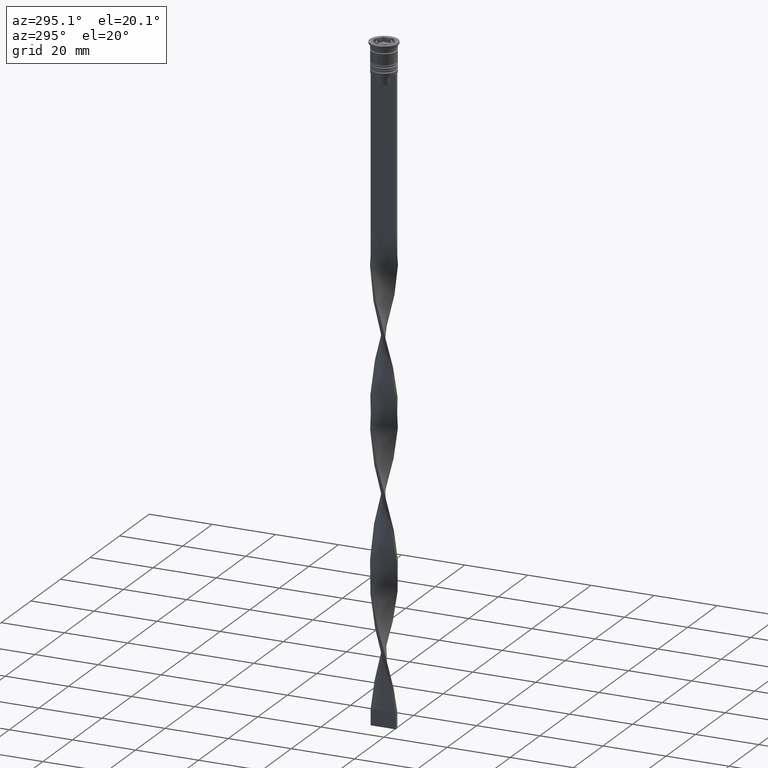
[diagram: clean part render]
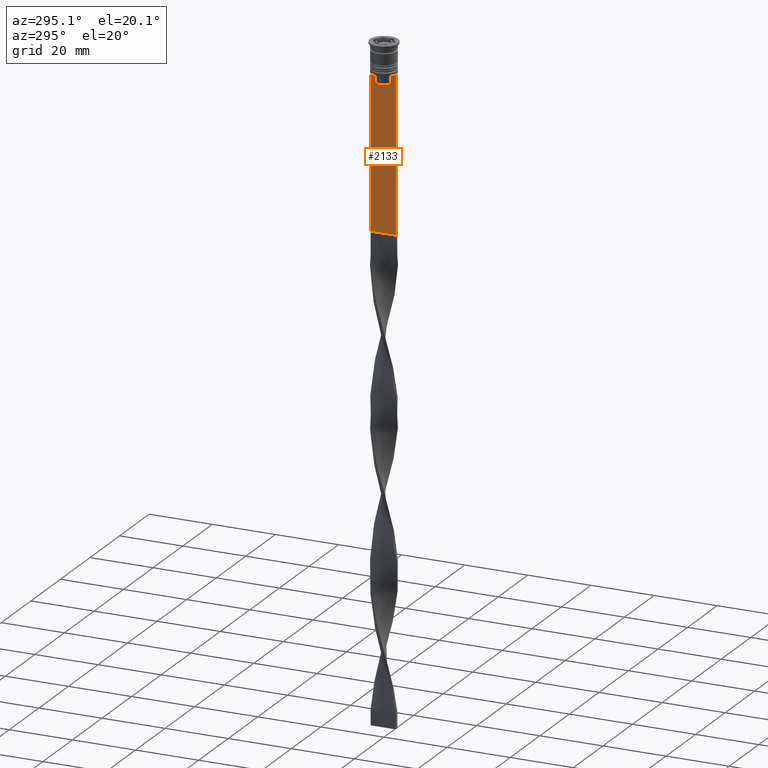
[diagram: same view with one face highlighted and labeled with its STEP entity id]
A machine part, auxiliary view. The second image highlights one B-rep face of the part: STEP entity #2133.
In plain terms, the highlighted planar face has unit normal (-1, 0, 0).
Its self-contained STEP definition (entity closure, byte-faithful):
#23 = B_SPLINE_CURVE_WITH_KNOTS ( 'NONE', 3,
 ( #3719, #686, #75, #947 ),
 .UNSPECIFIED., .F., .F.,
 ( 4, 4 ),
 ( 0.004956812174141195064, 0.005670477137898153989 ),
 .UNSPECIFIED. ) ;
#42 = LINE ( 'NONE', #1298, #1268 ) ;
#67 = EDGE_CURVE ( 'NONE', #195, #897, #3391, .T. ) ;
#73 = VERTEX_POINT ( 'NONE', #1922 ) ;
#75 = CARTESIAN_POINT ( 'NONE',  ( -0.5000000000000000000, 2.517407211010871393, -9.833663366238582171 ) ) ;
#128 = CARTESIAN_POINT ( 'NONE',  ( -0.5000000000000000000, 4.000000000000000000, -9.500000000000000000 ) ) ;
#195 = VERTEX_POINT ( 'NONE', #128 ) ;
#215 = EDGE_CURVE ( 'NONE', #195, #723, #3468, .T. ) ;
#284 = CARTESIAN_POINT ( 'NONE',  ( -0.5000000000000000000, 2.399999999999996803, -12.50000000000000000 ) ) ;
#308 = VERTEX_POINT ( 'NONE', #503 ) ;
#311 = EDGE_CURVE ( 'NONE', #73, #2855, #3584, .T. ) ;
#398 = CARTESIAN_POINT ( 'NONE',  ( -0.5000000000000000000, -3.867815921162741422, -9.500000000000000000 ) ) ;
#405 = ORIENTED_EDGE ( 'NONE', *, *, #2793, .F. ) ;
#503 = CARTESIAN_POINT ( 'NONE',  ( -0.5000000000000000000, -4.000000000000000000, -58.50000000000000000 ) ) ;
#505 = VECTOR ( 'NONE', #1531, 1000.000000000000000 ) ;
#567 = CARTESIAN_POINT ( 'NONE',  ( -0.5000000000000000000, 2.347338918861097135, -12.50000000000000000 ) ) ;
#617 = CARTESIAN_POINT ( 'NONE',  ( -0.5000000000000000000, 2.347338918861097135, 0.000000000000000000 ) ) ;
#646 = ORIENTED_EDGE ( 'NONE', *, *, #2195, .F. ) ;
#661 = CARTESIAN_POINT ( 'NONE',  ( -0.5000000000000000000, -4.000000000000000000, -9.500000000000000000 ) ) ;
#684 = VECTOR ( 'NONE', #3070, 1000.000000000000000 ) ;
#686 = CARTESIAN_POINT ( 'NONE',  ( -0.5000000000000000000, 2.687094542495897631, -9.666938847453439010 ) ) ;
#723 = VERTEX_POINT ( 'NONE', #3484 ) ;
#897 = VERTEX_POINT ( 'NONE', #2014 ) ;
#947 = CARTESIAN_POINT ( 'NONE',  ( -0.5000000000000000000, 2.347338918861097135, -10.00000000000000000 ) ) ;
#1040 = CARTESIAN_POINT ( 'NONE',  ( -0.5000000000000000000, -2.856571371417138572, -9.500000000000000000 ) ) ;
#1048 = ORIENTED_EDGE ( 'NONE', *, *, #311, .F. ) ;
#1268 = VECTOR ( 'NONE', #2501, 1000.000000000000000 ) ;
#1298 = CARTESIAN_POINT ( 'NONE',  ( -0.5000000000000000000, -4.000000000000000000, -1.437742251701450202 ) ) ;
#1335 = VECTOR ( 'NONE', #3750, 1000.000000000000000 ) ;
#1386 = VECTOR ( 'NONE', #2510, 1000.000000000000000 ) ;
#1425 = EDGE_CURVE ( 'NONE', #1678, #73, #3929, .T. ) ;
#1465 = CARTESIAN_POINT ( 'NONE',  ( -0.5000000000000000000, -2.347338918861097135, -12.50000000000000000 ) ) ;
#1531 = DIRECTION ( 'NONE',  ( -0.000000000000000000, -0.000000000000000000, 1.000000000000000000 ) ) ;
#1564 = DIRECTION ( 'NONE',  ( 0.000000000000000000, 0.000000000000000000, 1.000000000000000000 ) ) ;
#1567 = VECTOR ( 'NONE', #3094, 1000.000000000000000 ) ;
#1633 = LINE ( 'NONE', #1899, #1335 ) ;
#1678 = VERTEX_POINT ( 'NONE', #2135 ) ;
#1792 = EDGE_CURVE ( 'NONE', #2411, #3203, #3049, .T. ) ;
#1817 = EDGE_CURVE ( 'NONE', #2659, #2411, #3345, .T. ) ;
#1818 = ORIENTED_EDGE ( 'NONE', *, *, #1425, .F. ) ;
#1819 = ORIENTED_EDGE ( 'NONE', *, *, #3434, .F. ) ;
#1823 = ORIENTED_EDGE ( 'NONE', *, *, #67, .F. ) ;
#1871 = LINE ( 'NONE', #3087, #505 ) ;
#1899 = CARTESIAN_POINT ( 'NONE',  ( -0.5000000000000000000, -4.000000000000000000, -9.500000000000000000 ) ) ;
#1901 = CARTESIAN_POINT ( 'NONE',  ( -0.5000000000000000000, 4.000000000000000000, -1.437742251701450202 ) ) ;
#1922 = CARTESIAN_POINT ( 'NONE',  ( -0.5000000000000000000, -2.856571371417138572, -9.500000000000000000 ) ) ;
#1984 = CARTESIAN_POINT ( 'NONE',  ( -0.5000000000000000000, -2.517408374291112416, -9.833662228483172285 ) ) ;
#2014 = CARTESIAN_POINT ( 'NONE',  ( -0.5000000000000000000, 3.867815921162741422, -9.500000000000000000 ) ) ;
#2064 = VERTEX_POINT ( 'NONE', #2466 ) ;
#2116 = DIRECTION ( 'NONE',  ( 0.000000000000000000, 0.000000000000000000, -1.000000000000000000 ) ) ;
#2133 = ADVANCED_FACE ( 'NONE', ( #2491 ), #2190, .T. ) ;
#2135 = CARTESIAN_POINT ( 'NONE',  ( -0.5000000000000000000, -2.347338918861097135, -10.00000000000000000 ) ) ;
#2190 = PLANE ( 'NONE',  #3742 ) ;
#2195 = EDGE_CURVE ( 'NONE', #3161, #2659, #23, .T. ) ;
#2212 = VECTOR ( 'NONE', #2817, 1000.000000000000000 ) ;
#2235 = EDGE_CURVE ( 'NONE', #308, #723, #2824, .T. ) ;
#2400 = VECTOR ( 'NONE', #2968, 1000.000000000000000 ) ;
#2411 = VERTEX_POINT ( 'NONE', #567 ) ;
#2458 = ORIENTED_EDGE ( 'NONE', *, *, #1817, .F. ) ;
#2466 = CARTESIAN_POINT ( 'NONE',  ( -0.5000000000000000000, -4.000000000000000000, -9.500000000000000000 ) ) ;
#2491 = FACE_OUTER_BOUND ( 'NONE', #2943, .T. ) ;
#2501 = DIRECTION ( 'NONE',  ( 0.000000000000000000, 0.000000000000000000, -1.000000000000000000 ) ) ;
#2510 = DIRECTION ( 'NONE',  ( 0.000000000000000000, 1.000000000000000000, 0.000000000000000000 ) ) ;
#2523 = CARTESIAN_POINT ( 'NONE',  ( -0.5000000000000000000, -2.687095498514037839, -9.666937905752043037 ) ) ;
#2567 = ORIENTED_EDGE ( 'NONE', *, *, #2235, .F. ) ;
#2620 = CARTESIAN_POINT ( 'NONE',  ( -0.5000000000000000000, -4.000000000000000000, -9.500000000000000000 ) ) ;
#2659 = VERTEX_POINT ( 'NONE', #3842 ) ;
#2716 = ORIENTED_EDGE ( 'NONE', *, *, #2950, .F. ) ;
#2723 = VECTOR ( 'NONE', #2116, 1000.000000000000000 ) ;
#2751 = DIRECTION ( 'NONE',  ( 0.000000000000000000, -1.000000000000000000, 0.000000000000000000 ) ) ;
#2793 = EDGE_CURVE ( 'NONE', #2855, #2064, #3066, .T. ) ;
#2817 = DIRECTION ( 'NONE',  ( 0.000000000000000000, 0.000000000000000000, -1.000000000000000000 ) ) ;
#2823 = ORIENTED_EDGE ( 'NONE', *, *, #3421, .F. ) ;
#2824 = LINE ( 'NONE', #3102, #1386 ) ;
#2847 = CARTESIAN_POINT ( 'NONE',  ( -0.5000000000000000000, 2.856571371417138572, -9.500000000000000000 ) ) ;
#2855 = VERTEX_POINT ( 'NONE', #398 ) ;
#2943 = EDGE_LOOP ( 'NONE', ( #646, #2823, #1823, #3290, #2567, #1819, #405, #1048, #1818, #2716, #3220, #2458 ) ) ;
#2950 = EDGE_CURVE ( 'NONE', #3203, #1678, #1871, .T. ) ;
#2968 = DIRECTION ( 'NONE',  ( 0.000000000000000000, -1.000000000000000000, 0.000000000000000000 ) ) ;
#3040 = DIRECTION ( 'NONE',  ( -1.000000000000000000, 0.000000000000000000, 0.000000000000000000 ) ) ;
#3049 = LINE ( 'NONE', #284, #684 ) ;
#3066 = LINE ( 'NONE', #3364, #3555 ) ;
#3070 = DIRECTION ( 'NONE',  ( 0.000000000000000000, -1.000000000000000000, 0.000000000000000000 ) ) ;
#3087 = CARTESIAN_POINT ( 'NONE',  ( -0.5000000000000000000, -2.347338918861097135, 0.000000000000000000 ) ) ;
#3094 = DIRECTION ( 'NONE',  ( 0.000000000000000000, -1.000000000000000000, 0.000000000000000000 ) ) ;
#3102 = CARTESIAN_POINT ( 'NONE',  ( -0.5000000000000000000, -4.000000000000000000, -58.50000000000000000 ) ) ;
#3161 = VERTEX_POINT ( 'NONE', #2847 ) ;
#3203 = VERTEX_POINT ( 'NONE', #1465 ) ;
#3220 = ORIENTED_EDGE ( 'NONE', *, *, #1792, .F. ) ;
#3290 = ORIENTED_EDGE ( 'NONE', *, *, #215, .T. ) ;
#3345 = LINE ( 'NONE', #617, #2723 ) ;
#3360 = CARTESIAN_POINT ( 'NONE',  ( -0.5000000000000000000, -4.000000000000000000, -1.437742251701450202 ) ) ;
#3364 = CARTESIAN_POINT ( 'NONE',  ( -0.5000000000000000000, -4.000000000000000000, -9.500000000000000000 ) ) ;
#3391 = LINE ( 'NONE', #661, #1567 ) ;
#3421 = EDGE_CURVE ( 'NONE', #897, #3161, #1633, .T. ) ;
#3434 = EDGE_CURVE ( 'NONE', #2064, #308, #42, .T. ) ;
#3468 = LINE ( 'NONE', #1901, #2212 ) ;
#3484 = CARTESIAN_POINT ( 'NONE',  ( -0.5000000000000000000, 4.000000000000000000, -58.50000000000000000 ) ) ;
#3555 = VECTOR ( 'NONE', #2751, 1000.000000000000000 ) ;
#3584 = LINE ( 'NONE', #2620, #2400 ) ;
#3719 = CARTESIAN_POINT ( 'NONE',  ( -0.5000000000000000000, 2.856571371417138572, -9.500000000000000000 ) ) ;
#3742 = AXIS2_PLACEMENT_3D ( 'NONE', #3360, #3040, #1564 ) ;
#3750 = DIRECTION ( 'NONE',  ( 0.000000000000000000, -1.000000000000000000, 0.000000000000000000 ) ) ;
#3769 = CARTESIAN_POINT ( 'NONE',  ( -0.5000000000000000000, -2.347338918861097135, -10.00000000000000000 ) ) ;
#3842 = CARTESIAN_POINT ( 'NONE',  ( -0.5000000000000000000, 2.347338918861097135, -10.00000000000000000 ) ) ;
#3929 = B_SPLINE_CURVE_WITH_KNOTS ( 'NONE', 3,
 ( #3769, #1984, #2523, #1040 ),
 .UNSPECIFIED., .F., .F.,
 ( 4, 4 ),
 ( 0.01178336557230038641, 0.01249758354768160454 ),
 .UNSPECIFIED. ) ;